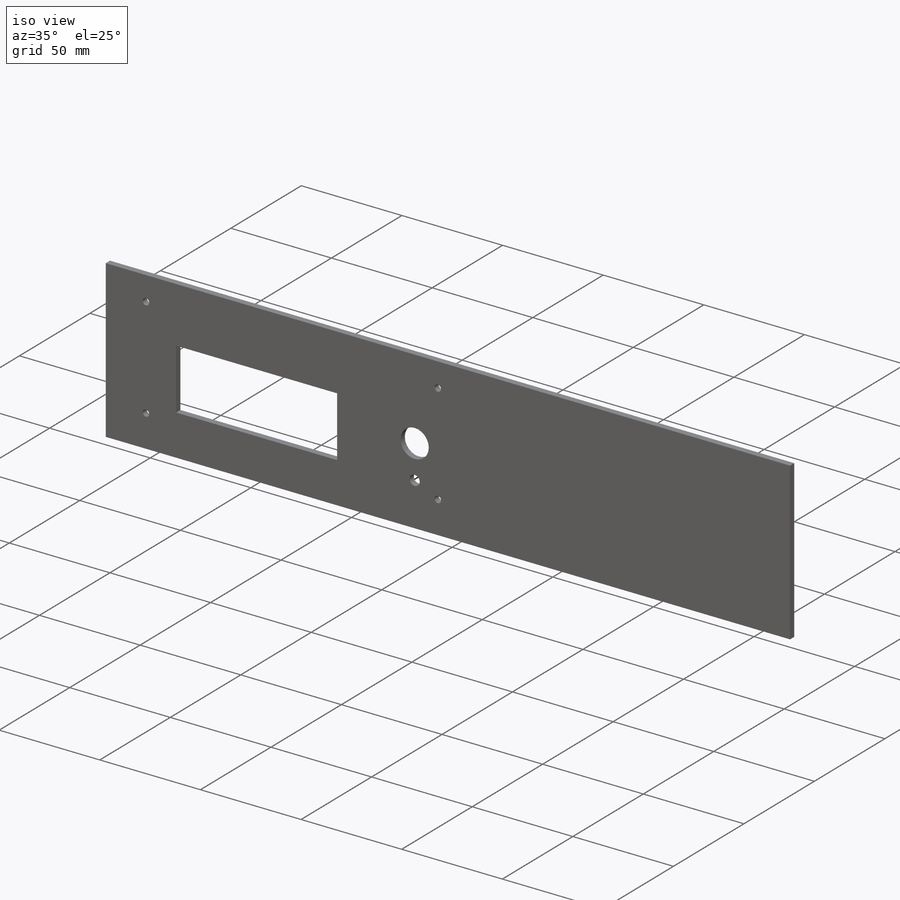
[diagram: iso view]
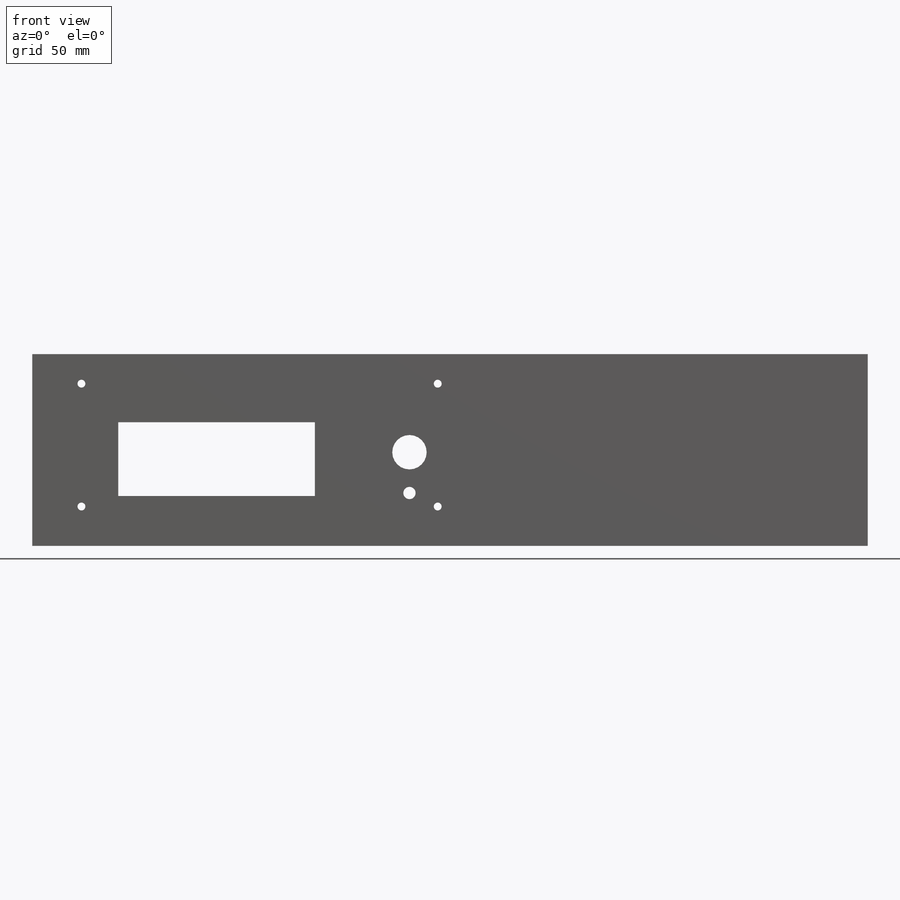
[diagram: front view]
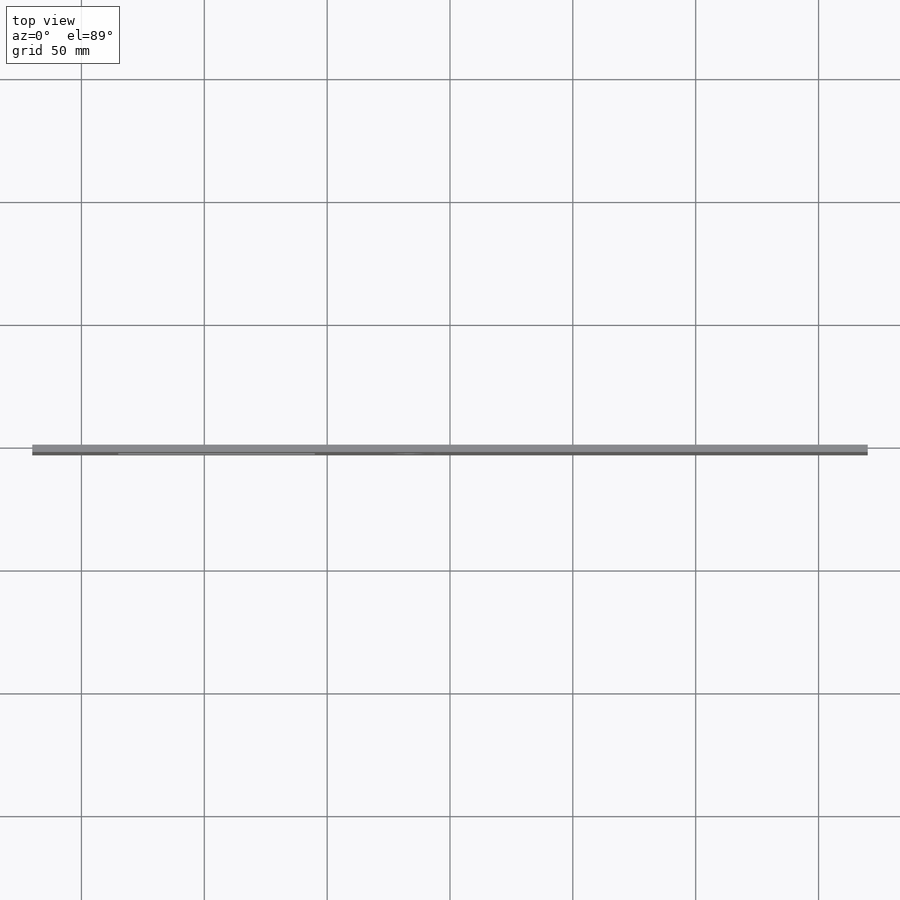
[diagram: top view]
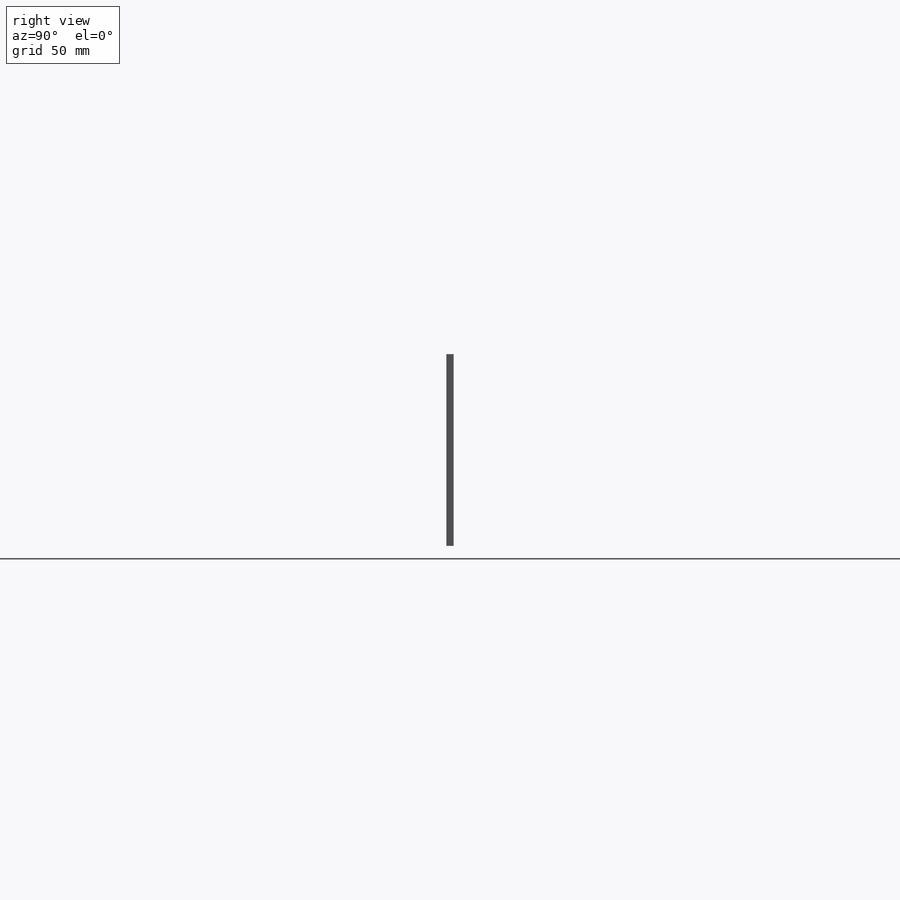
[diagram: right view]
SOLIDWORKS PART (.sldprt)
format: sldprt  version: not decoded by parser v0  size: 194,048 bytes
history: native  units: mm
features: sketch x4, plane x3, cut_extrude x3, material x1, extrude x1 (+8 scaffold rows collapsed)
feature tree (20):
  scaffold x8  (default folders/planes/origin — collapsed)
  material  "Matériau <non spécifié>"
  plane  "Plan de face"
  plane  "Plan de dessus"
  plane  "Plan de droite"
  sketch  "Esquisse1"  dims[D1=340.0mm D2=170.0mm D3=78.0mm D4=39.0mm]
  extrude  "Boss.-Extru.1"  Depth=3mm
  sketch  "Esquisse2"  dims[c1.D1=3.2mm c1.D2=3.2mm c1.D3=3.2mm c1.D4=3.2mm c1.D5=3.2mm c1.D6=3.2mm c1.D7=3.2mm c1.D8=3.2mm c1.D10=3.2mm c1.D11=3.2mm c1.D12=3.2mm c2.D5=145.0mm c2.D6=145.0mm c2.D7=50.0mm c2.D8=12.0mm c2.D9=20.0mm c2.D10=20.0mm c2.D11=50.0mm c2.D12=12.0mm]
  cut_extrude  "Enlèv. mat.-Extru.1"  [1 undecoded]
  sketch  "Esquisse3"  dims[D1=80.0mm D2=30.0mm D3=15.0mm D4=15.7mm]
  cut_extrude  "Enlèv. mat.-Extru.2"  [1 undecoded]
  sketch  "Esquisse4"  dims[c1.D1=~14.734859mm c1.D2=~14.734859mm c1.D3=~9.733336mm c1.D4=~9.733336mm c1.D5=14.0mm c1.D6=5.0mm c2.D1=11.5mm c2.D2=27.9mm c2.D3=11.5mm c2.D4=5.5mm]
  cut_extrude  "Enlèv. mat.-Extru.3"  [1 undecoded]
decode coverage: 5 of 8 modeling features carry decoded parameters
note: ~ marks probable driven/reference dimensions
note: 3 parameter values undecoded
summary: no parameter record found for 3 features
note: suppression state not decoded; provenance and decode notes live in map.json
